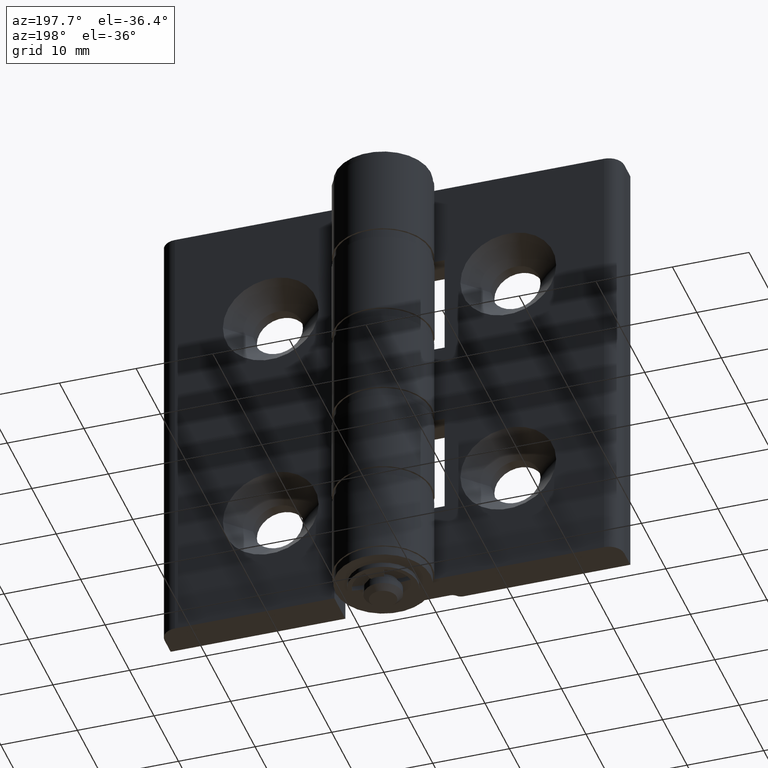
[diagram: clean part render]
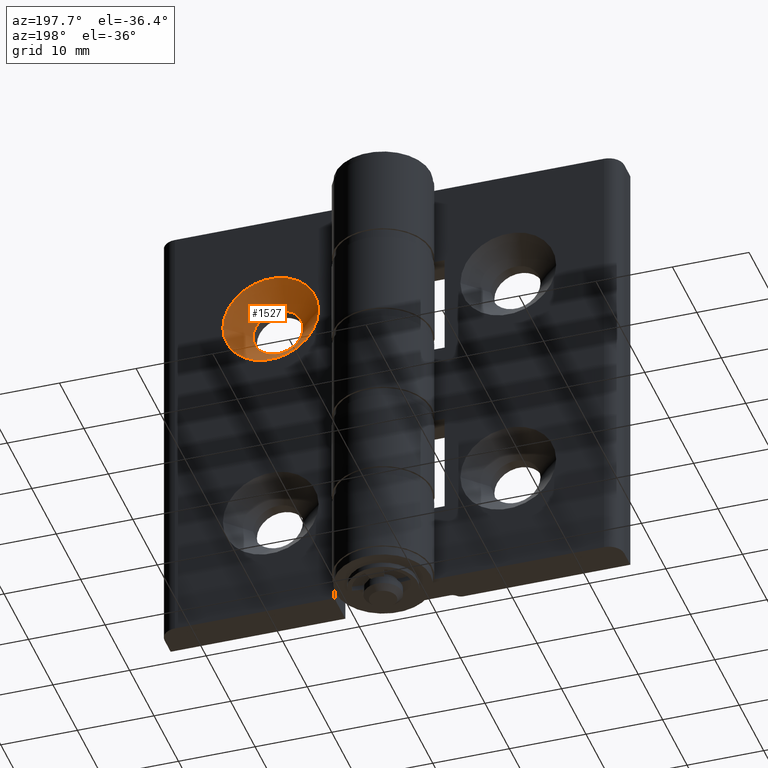
[diagram: same view with one face highlighted and labeled with its STEP entity id]
A machine part, auxiliary view. The second image highlights one B-rep face of the part: STEP entity #1527.
In plain terms, the highlighted conical surface has half-angle 45 deg.
Its self-contained STEP definition (entity closure, byte-faithful):
#109=FACE_BOUND('',#356,.T.);
#136=CONICAL_SURFACE('',#1680,4.75,45.);
#232=FACE_OUTER_BOUND('',#355,.T.);
#355=EDGE_LOOP('',(#1241));
#356=EDGE_LOOP('',(#1242));
#679=CIRCLE('',#1681,6.25);
#680=CIRCLE('',#1682,3.25);
#798=VERTEX_POINT('',#2519);
#799=VERTEX_POINT('',#2521);
#963=EDGE_CURVE('',#798,#798,#679,.T.);
#964=EDGE_CURVE('',#799,#799,#680,.T.);
#1241=ORIENTED_EDGE('',*,*,#963,.F.);
#1242=ORIENTED_EDGE('',*,*,#964,.F.);
#1527=ADVANCED_FACE('',(#232,#109),#136,.F.);
#1680=AXIS2_PLACEMENT_3D('',#2518,#2035,#2036);
#1681=AXIS2_PLACEMENT_3D('',#2520,#2037,#2038);
#1682=AXIS2_PLACEMENT_3D('',#2522,#2039,#2040);
#2035=DIRECTION('center_axis',(-1.85037170770859E-16,1.,0.));
#2036=DIRECTION('ref_axis',(1.,1.85037170770859E-16,-1.06752213906265E-16));
#2037=DIRECTION('center_axis',(1.85037170770859E-16,-1.,0.));
#2038=DIRECTION('ref_axis',(1.,1.85037170770859E-16,-1.06752213906265E-16));
#2039=DIRECTION('center_axis',(-1.85037170770859E-16,1.,0.));
#2040=DIRECTION('ref_axis',(1.,1.85037170770859E-16,-1.06752213906265E-16));
#2518=CARTESIAN_POINT('Origin',(15.5,3.,-15.));
#2519=CARTESIAN_POINT('',(21.75,4.5,-15.));
#2520=CARTESIAN_POINT('Origin',(15.5,4.5,-15.));
#2521=CARTESIAN_POINT('',(18.75,1.5,-15.));
#2522=CARTESIAN_POINT('Origin',(15.5,1.5,-15.));